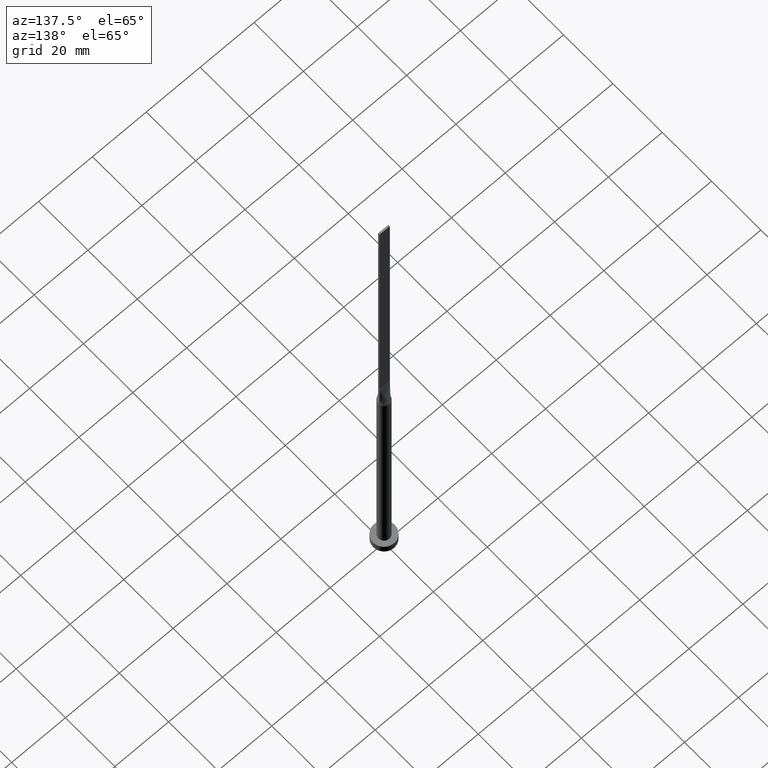
[diagram: clean part render]
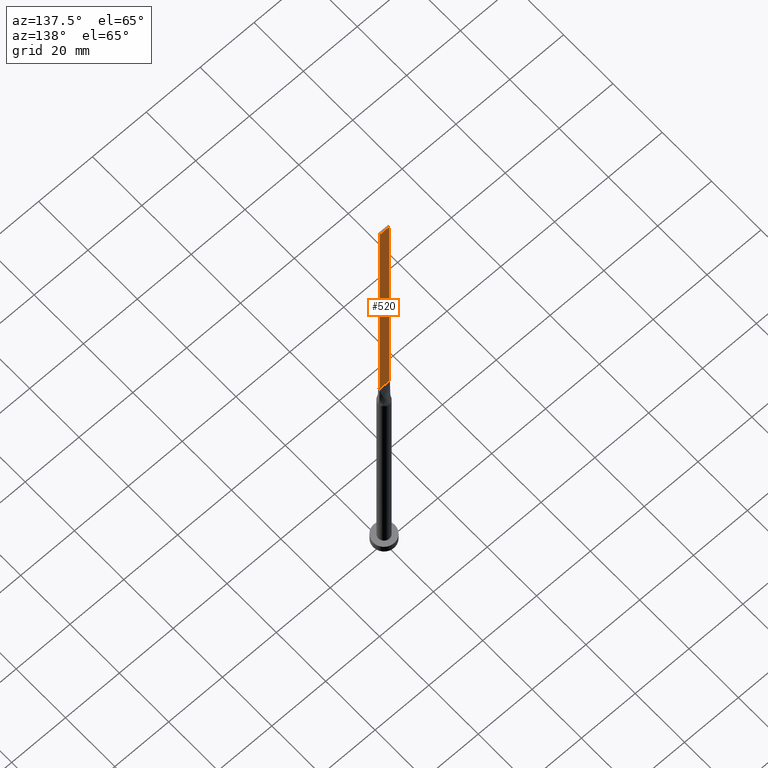
[diagram: same view with one face highlighted and labeled with its STEP entity id]
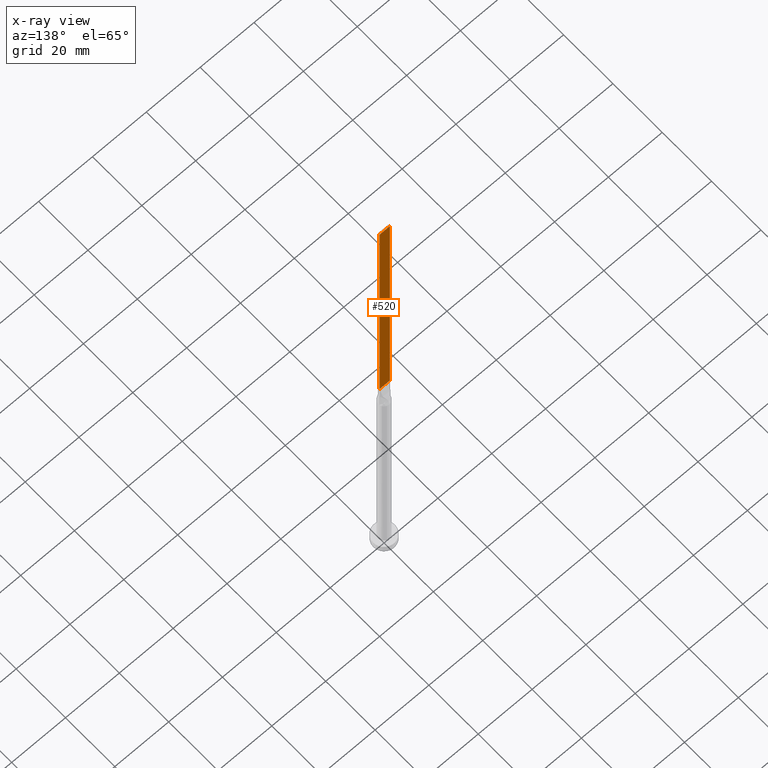
[diagram: x-ray of the same camera — body ghosted, the highlighted face saturated]
A machine part, auxiliary view. The second image highlights one B-rep face of the part: STEP entity #520.
The next image is the same camera in x-ray: the body ghosted, the highlighted face saturated — about 0% of this face is hidden behind the body in this view.
In plain terms, the highlighted planar face has unit normal (0, -1, 0).
Its self-contained STEP definition (entity closure, byte-faithful):
#6 = VECTOR ( 'NONE', #418, 1000.000000000000000 ) ;
#10 = EDGE_CURVE ( 'NONE', #175, #480, #168, .T. ) ;
#27 = DIRECTION ( 'NONE',  ( 0.000000000000000000, -0.000000000000000000, -1.000000000000000000 ) ) ;
#35 = DIRECTION ( 'NONE',  ( -0.000000000000000000, -0.000000000000000000, -1.000000000000000000 ) ) ;
#38 = VECTOR ( 'NONE', #207, 1000.000000000000000 ) ;
#46 = EDGE_CURVE ( 'NONE', #509, #480, #290, .T. ) ;
#76 = EDGE_LOOP ( 'NONE', ( #499, #184, #426, #305 ) ) ;
#95 = AXIS2_PLACEMENT_3D ( 'NONE', #263, #333, #27 ) ;
#98 = EDGE_CURVE ( 'NONE', #453, #175, #424, .T. ) ;
#116 = VECTOR ( 'NONE', #35, 1000.000000000000000 ) ;
#140 = FACE_OUTER_BOUND ( 'NONE', #76, .T. ) ;
#168 = LINE ( 'NONE', #530, #38 ) ;
#175 = VERTEX_POINT ( 'NONE', #303 ) ;
#184 = ORIENTED_EDGE ( 'NONE', *, *, #46, .F. ) ;
#207 = DIRECTION ( 'NONE',  ( -1.000000000000000000, -0.000000000000000000, -0.000000000000000000 ) ) ;
#212 = DIRECTION ( 'NONE',  ( -0.000000000000000000, -0.000000000000000000, -1.000000000000000000 ) ) ;
#213 = CARTESIAN_POINT ( 'NONE',  ( 1.899999999999999689, 0.3000000000000002109, 200.0000000000000000 ) ) ;
#227 = LINE ( 'NONE', #366, #6 ) ;
#237 = CARTESIAN_POINT ( 'NONE',  ( -1.899999999999999689, 0.3000000000000002109, 99.99999999999998579 ) ) ;
#263 = CARTESIAN_POINT ( 'NONE',  ( 1.899999999999999689, 0.3000000000000002109, 200.0000000000000000 ) ) ;
#290 = LINE ( 'NONE', #578, #449 ) ;
#303 = CARTESIAN_POINT ( 'NONE',  ( 1.899999999999999689, 0.3000000000000002109, 99.99999999999998579 ) ) ;
#305 = ORIENTED_EDGE ( 'NONE', *, *, #98, .T. ) ;
#312 = PLANE ( 'NONE',  #95 ) ;
#326 = CARTESIAN_POINT ( 'NONE',  ( -1.899999999999999689, 0.3000000000000002109, 200.0000000000000000 ) ) ;
#333 = DIRECTION ( 'NONE',  ( 0.000000000000000000, -1.000000000000000000, 0.000000000000000000 ) ) ;
#364 = EDGE_CURVE ( 'NONE', #453, #509, #227, .T. ) ;
#366 = CARTESIAN_POINT ( 'NONE',  ( 1.899999999999999689, 0.3000000000000002109, 200.0000000000000000 ) ) ;
#418 = DIRECTION ( 'NONE',  ( -1.000000000000000000, 0.000000000000000000, 0.000000000000000000 ) ) ;
#424 = LINE ( 'NONE', #516, #116 ) ;
#426 = ORIENTED_EDGE ( 'NONE', *, *, #364, .F. ) ;
#449 = VECTOR ( 'NONE', #212, 1000.000000000000000 ) ;
#453 = VERTEX_POINT ( 'NONE', #213 ) ;
#480 = VERTEX_POINT ( 'NONE', #237 ) ;
#499 = ORIENTED_EDGE ( 'NONE', *, *, #10, .T. ) ;
#509 = VERTEX_POINT ( 'NONE', #326 ) ;
#516 = CARTESIAN_POINT ( 'NONE',  ( 1.899999999999999689, 0.3000000000000002109, 200.0000000000000000 ) ) ;
#520 = ADVANCED_FACE ( 'NONE', ( #140 ), #312, .F. ) ;
#530 = CARTESIAN_POINT ( 'NONE',  ( -1.899999999999999689, 0.3000000000000002109, 99.99999999999998579 ) ) ;
#578 = CARTESIAN_POINT ( 'NONE',  ( -1.899999999999999689, 0.3000000000000002109, 200.0000000000000000 ) ) ;